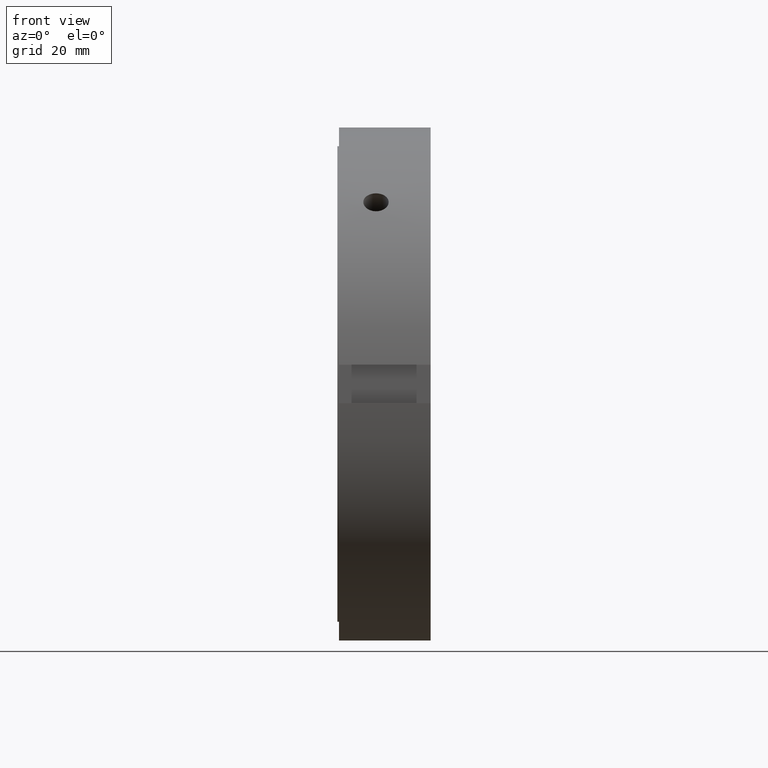
[diagram: clean part render]
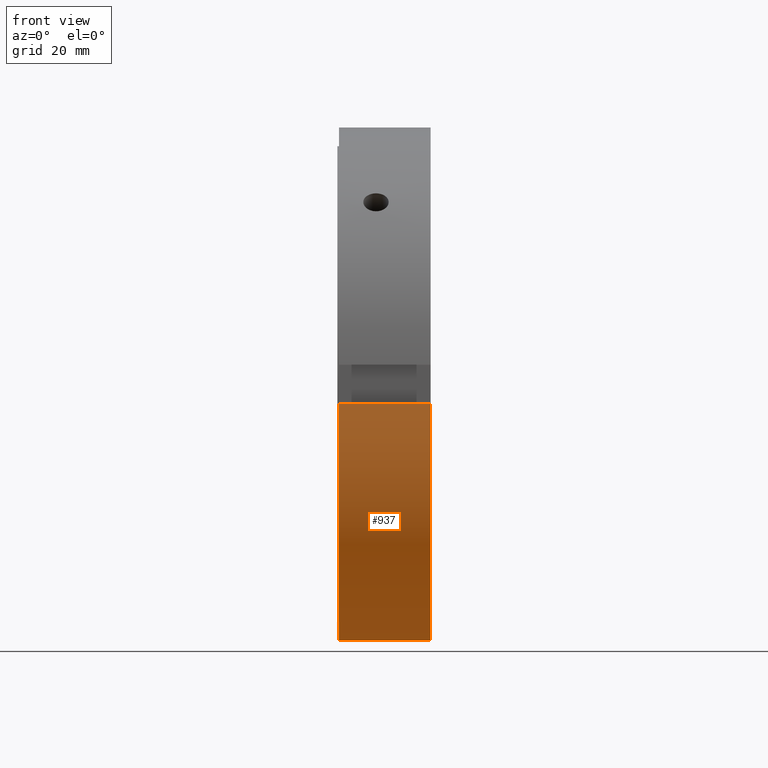
[diagram: same view with one face highlighted and labeled with its STEP entity id]
A machine part, front view. The second image highlights one B-rep face of the part: STEP entity #937.
In plain terms, the highlighted cylindrical surface (partial cylindrical patch) has radius 80 mm, axis along (1, 0, 0).
Its self-contained STEP definition (entity closure, byte-faithful):
#519=CARTESIAN_POINT('',(0.499999999999976,-6.000000000000011,-79.774682700716525));
#520=VERTEX_POINT('',#519);
#535=CARTESIAN_POINT('',(28.999999999999986,-6.000000000000011,-79.774682700716525));
#536=VERTEX_POINT('',#535);
#543=CARTESIAN_POINT('',(0.499999999999975,-6.000000000000011,-79.774682700716525));
#544=DIRECTION('',(1.0,0.0,0.0));
#545=VECTOR('',#544,28.500000000000011);
#546=LINE('',#543,#545);
#547=EDGE_CURVE('',#520,#536,#546,.T.);
#659=CARTESIAN_POINT('',(0.499999999999976,-79.774682700716525,-5.999999999999988));
#660=VERTEX_POINT('',#659);
#669=CARTESIAN_POINT('',(28.999999999999986,-79.774682700716525,-5.999999999999988));
#670=VERTEX_POINT('',#669);
#671=CARTESIAN_POINT('',(28.999999999999986,-79.774682700716525,-5.999999999999987));
#672=DIRECTION('',(-1.0,0.0,0.0));
#673=VECTOR('',#672,28.500000000000011);
#674=LINE('',#671,#673);
#675=EDGE_CURVE('',#670,#660,#674,.T.);
#914=CARTESIAN_POINT('',(14.74999999999998,0.0,0.0));
#915=DIRECTION('',(1.0,0.0,0.0));
#916=DIRECTION('',(0.0,1.0,0.0));
#917=AXIS2_PLACEMENT_3D('',#914,#915,#916);
#918=CYLINDRICAL_SURFACE('',#917,80.0);
#919=ORIENTED_EDGE('',*,*,#547,.T.);
#920=CARTESIAN_POINT('',(28.999999999999986,0.0,0.0));
#921=DIRECTION('',(1.0,0.0,0.0));
#922=DIRECTION('',(0.0,1.0,0.0));
#923=AXIS2_PLACEMENT_3D('',#920,#921,#922);
#924=CIRCLE('',#923,80.0);
#925=EDGE_CURVE('',#670,#536,#924,.T.);
#926=ORIENTED_EDGE('',*,*,#925,.F.);
#927=ORIENTED_EDGE('',*,*,#675,.T.);
#928=CARTESIAN_POINT('',(0.499999999999976,0.0,0.0));
#929=DIRECTION('',(1.0,0.0,0.0));
#930=DIRECTION('',(0.0,1.0,0.0));
#931=AXIS2_PLACEMENT_3D('',#928,#929,#930);
#932=CIRCLE('',#931,80.0);
#933=EDGE_CURVE('',#660,#520,#932,.T.);
#934=ORIENTED_EDGE('',*,*,#933,.T.);
#935=EDGE_LOOP('',(#919,#926,#927,#934));
#936=FACE_OUTER_BOUND('',#935,.T.);
#937=ADVANCED_FACE('',(#936),#918,.T.);